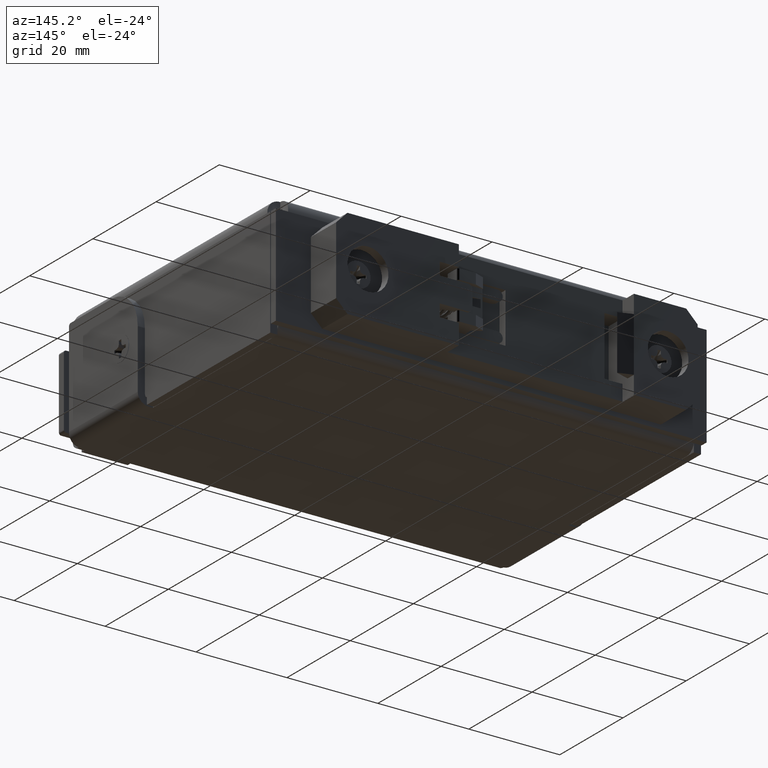
[diagram: clean part render]
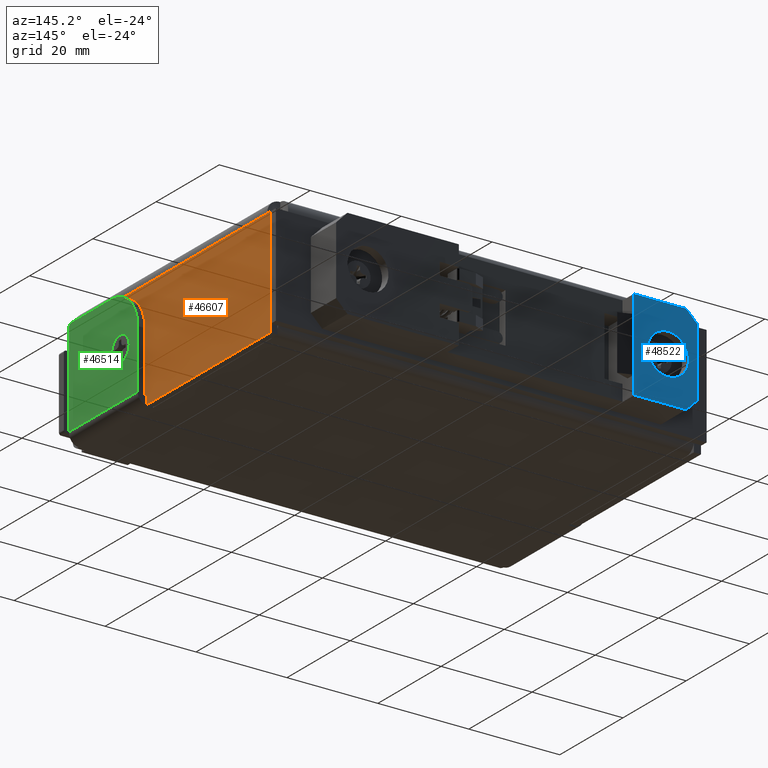
[diagram: same view with three faces highlighted in distinct colors, each labeled with its STEP entity id]
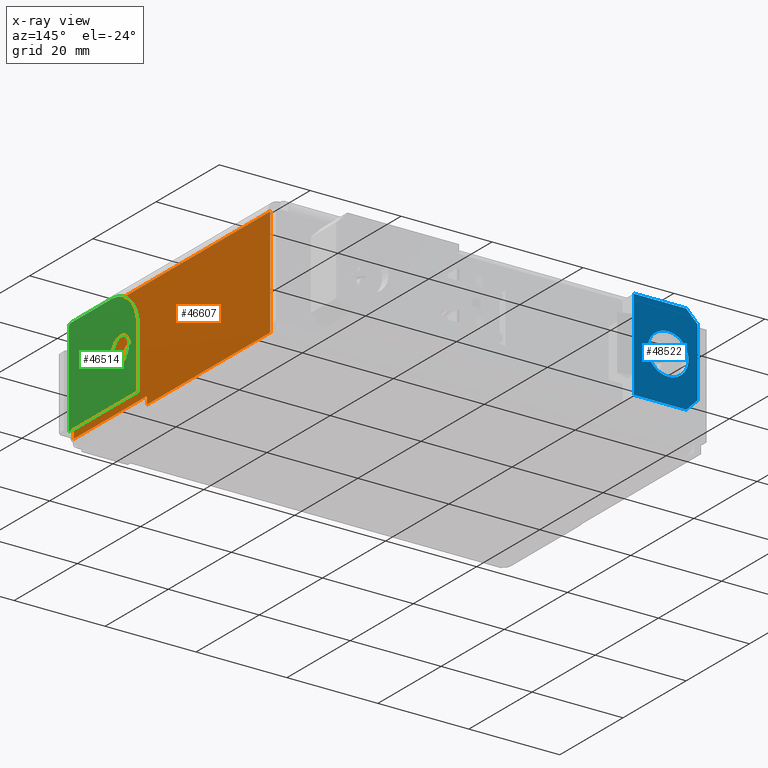
[diagram: x-ray of the same camera — body ghosted, the three highlighted faces saturated]
A machine part, auxiliary view with three faces highlighted in distinct colors.
The next image is the same camera in x-ray (body ghosted, the three faces saturated) — at least one of them is partly hidden behind the body in this view.
Their STEP definitions:

[orange] entity #46607 — the highlighted planar face has unit normal (1, -0, -0).
#520=FACE_BOUND('',#6797,.T.);
#891=PLANE('',#48980);
#4193=FACE_OUTER_BOUND('',#6796,.T.);
#6796=EDGE_LOOP('',(#34490,#34491,#34492,#34493,#34494,#34495,#34496,#34497));
#6797=EDGE_LOOP('',(#34498));
#9775=LINE('',#70749,#14920);
#9783=LINE('',#70765,#14928);
#9796=LINE('',#70791,#14941);
#9797=LINE('',#70793,#14942);
#9816=LINE('',#70834,#14961);
#9820=LINE('',#70850,#14965);
#9823=LINE('',#70885,#14968);
#14920=VECTOR('',#53215,0.393700787401575);
#14928=VECTOR('',#53227,0.393700787401575);
#14941=VECTOR('',#53248,0.393700787401575);
#14942=VECTOR('',#53251,0.393700787401575);
#14961=VECTOR('',#53284,0.393700787401575);
#14965=VECTOR('',#53292,0.08246);
#14968=VECTOR('',#53301,0.393700787401575);
#19342=CIRCLE('',#48931,0.06);
#19357=CIRCLE('',#48958,0.015748031496063);
#21097=VERTEX_POINT('',#70661);
#21125=VERTEX_POINT('',#70739);
#21126=VERTEX_POINT('',#70741);
#21128=VERTEX_POINT('',#70747);
#21134=VERTEX_POINT('',#70763);
#21142=VERTEX_POINT('',#70787);
#21143=VERTEX_POINT('',#70789);
#21158=VERTEX_POINT('',#70833);
#21161=VERTEX_POINT('',#70848);
#25996=EDGE_CURVE('',#21097,#21097,#19342,.T.);
#26035=EDGE_CURVE('',#21125,#21126,#19357,.T.);
#26039=EDGE_CURVE('',#21125,#21128,#9775,.T.);
#26047=EDGE_CURVE('',#21128,#21134,#9783,.T.);
#26060=EDGE_CURVE('',#21143,#21142,#9796,.T.);
#26061=EDGE_CURVE('',#21142,#21134,#9797,.T.);
#26080=EDGE_CURVE('',#21143,#21158,#9816,.T.);
#26086=EDGE_CURVE('',#21158,#21161,#9820,.T.);
#26091=EDGE_CURVE('',#21161,#21126,#9823,.T.);
#34490=ORIENTED_EDGE('',*,*,#26039,.T.);
#34491=ORIENTED_EDGE('',*,*,#26047,.T.);
#34492=ORIENTED_EDGE('',*,*,#26061,.F.);
#34493=ORIENTED_EDGE('',*,*,#26060,.F.);
#34494=ORIENTED_EDGE('',*,*,#26080,.T.);
#34495=ORIENTED_EDGE('',*,*,#26086,.T.);
#34496=ORIENTED_EDGE('',*,*,#26091,.T.);
#34497=ORIENTED_EDGE('',*,*,#26035,.F.);
#34498=ORIENTED_EDGE('',*,*,#25996,.T.);
#46607=ADVANCED_FACE('',(#4193,#520),#891,.T.);
#48931=AXIS2_PLACEMENT_3D('',#70662,#53130,#53131);
#48958=AXIS2_PLACEMENT_3D('',#70742,#53208,#53209);
#48980=AXIS2_PLACEMENT_3D('',#70888,#53305,#53306);
#53130=DIRECTION('center_axis',(-1.,3.73942973021839E-95,-1.71512449944288E-15));
#53131=DIRECTION('ref_axis',(3.51660670886406E-46,-1.,-9.43689570931383E-16));
#53208=DIRECTION('center_axis',(1.,-3.73942973021839E-95,1.71512449944288E-15));
#53209=DIRECTION('ref_axis',(0.,-0.707106781186547,-0.707106781186547));
#53215=DIRECTION('',(-1.71512449944288E-15,0.,1.));
#53227=DIRECTION('',(-4.83037991275703E-47,-1.,2.90045765183322E-15));
#53248=DIRECTION('',(0.,-1.,0.));
#53251=DIRECTION('',(0.,0.,1.));
#53284=DIRECTION('',(3.73942973021839E-95,1.,0.));
#53292=DIRECTION('',(-1.77635683940025E-15,-3.70336020607219E-95,1.));
#53301=DIRECTION('',(-3.73942973021839E-95,-1.,-6.41358754424265E-110));
#53305=DIRECTION('center_axis',(1.,-3.73942973021839E-95,1.71512449944288E-15));
#53306=DIRECTION('ref_axis',(1.71512449944288E-15,-3.7394297302184E-95,
-1.));
#70661=CARTESIAN_POINT('',(1.865,0.636343582698249,0.567172404581086));
#70662=CARTESIAN_POINT('Origin',(1.865,0.576343582698249,0.567172404581086));
#70739=CARTESIAN_POINT('',(1.865,0.346456698193325,1.01574803149606));
#70741=CARTESIAN_POINT('',(1.865,0.362204729689388,1.));
#70742=CARTESIAN_POINT('Origin',(1.865,0.362204729689388,1.01574803149606));
#70747=CARTESIAN_POINT('',(1.865,0.346456698193325,1.067));
#70749=CARTESIAN_POINT('',(1.865,0.346456698193325,0.749246474039361));
#70763=CARTESIAN_POINT('',(1.865,-1.19012598425197,1.067));
#70765=CARTESIAN_POINT('',(1.865,-0.804011809703637,1.067));
#70787=CARTESIAN_POINT('',(1.865,-1.19012598425197,0.124));
#70789=CARTESIAN_POINT('',(1.865,-1.15415937956644,0.124));
#70791=CARTESIAN_POINT('',(1.865,-1.15415937956644,0.124));
#70793=CARTESIAN_POINT('',(1.865,-1.19012598425197,1.));
#70833=CARTESIAN_POINT('',(1.865,1.26,0.124));
#70834=CARTESIAN_POINT('',(1.865,0.0590294846789331,0.124));
#70848=CARTESIAN_POINT('',(1.865,1.26,1.));
#70850=CARTESIAN_POINT('',(1.865,1.26,-0.135055730215014));
#70885=CARTESIAN_POINT('',(1.865,0.205194841649611,1.));
#70888=CARTESIAN_POINT('Origin',(1.865,0.0560589693578658,0.498492948078721));

[blue] entity #48522 — the highlighted planar face has unit normal (0, 1, 0).
#683=FACE_BOUND('',#8875,.T.);
#2335=PLANE('',#51614);
#6108=FACE_OUTER_BOUND('',#8874,.T.);
#8874=EDGE_LOOP('',(#45019,#45020,#45021,#45022,#45023,#45024,#45025,#45026));
#8875=EDGE_LOOP('',(#45027));
#13894=LINE('',#92771,#19039);
#13903=LINE('',#92789,#19048);
#13934=LINE('',#92859,#19079);
#13938=LINE('',#92865,#19083);
#13962=LINE('',#92912,#19107);
#13964=LINE('',#92916,#19109);
#13965=LINE('',#92918,#19110);
#13970=LINE('',#92928,#19115);
#19039=VECTOR('',#62570,0.393700787401575);
#19048=VECTOR('',#62587,0.393700787401575);
#19079=VECTOR('',#62648,0.393700787401575);
#19083=VECTOR('',#62652,0.393700787401575);
#19107=VECTOR('',#62700,0.393700787401575);
#19109=VECTOR('',#62704,0.393700787401575);
#19110=VECTOR('',#62707,0.393700787401575);
#19115=VECTOR('',#62720,0.393700787401575);
#20147=CIRCLE('',#51615,0.177165354330709);
#24411=VERTEX_POINT('',#92768);
#24412=VERTEX_POINT('',#92770);
#24416=VERTEX_POINT('',#92786);
#24417=VERTEX_POINT('',#92788);
#24440=VERTEX_POINT('',#92856);
#24443=VERTEX_POINT('',#92864);
#24454=VERTEX_POINT('',#92910);
#24455=VERTEX_POINT('',#92914);
#24457=VERTEX_POINT('',#92929);
#31273=EDGE_CURVE('',#24412,#24411,#13894,.T.);
#31282=EDGE_CURVE('',#24417,#24416,#13903,.T.);
#31317=EDGE_CURVE('',#24416,#24440,#13934,.T.);
#31321=EDGE_CURVE('',#24443,#24412,#13938,.T.);
#31346=EDGE_CURVE('',#24454,#24417,#13962,.T.);
#31348=EDGE_CURVE('',#24455,#24454,#13964,.T.);
#31349=EDGE_CURVE('',#24411,#24455,#13965,.T.);
#31354=EDGE_CURVE('',#24440,#24443,#13970,.T.);
#31355=EDGE_CURVE('',#24457,#24457,#20147,.T.);
#45019=ORIENTED_EDGE('',*,*,#31354,.T.);
#45020=ORIENTED_EDGE('',*,*,#31321,.T.);
#45021=ORIENTED_EDGE('',*,*,#31273,.T.);
#45022=ORIENTED_EDGE('',*,*,#31349,.T.);
#45023=ORIENTED_EDGE('',*,*,#31348,.T.);
#45024=ORIENTED_EDGE('',*,*,#31346,.T.);
#45025=ORIENTED_EDGE('',*,*,#31282,.T.);
#45026=ORIENTED_EDGE('',*,*,#31317,.T.);
#45027=ORIENTED_EDGE('',*,*,#31355,.T.);
#48522=ADVANCED_FACE('',(#6108,#683),#2335,.T.);
#51614=AXIS2_PLACEMENT_3D('',#92927,#62718,#62719);
#51615=AXIS2_PLACEMENT_3D('',#92930,#62721,#62722);
#62570=DIRECTION('',(-1.,0.,0.));
#62587=DIRECTION('',(1.,0.,0.));
#62648=DIRECTION('',(6.666706076075E-10,-3.10004799608521E-11,-1.));
#62652=DIRECTION('',(-6.666706076075E-10,3.10004799608521E-11,-1.));
#62700=DIRECTION('',(0.707106781186547,0.,0.707106781186547));
#62704=DIRECTION('',(0.,0.,1.));
#62707=DIRECTION('',(-0.707106781186548,0.,0.707106781186547));
#62718=DIRECTION('center_axis',(0.,1.,0.));
#62719=DIRECTION('ref_axis',(0.,0.,1.));
#62720=DIRECTION('',(0.,0.,-1.));
#62721=DIRECTION('center_axis',(0.,-1.,0.));
#62722=DIRECTION('ref_axis',(-2.46716227694479E-16,0.,1.));
#92768=CARTESIAN_POINT('',(0.0984251969160105,0.31496062992126,-0.787401574816273));
#92770=CARTESIAN_POINT('',(0.551181102292213,0.31496062992126,-0.78740157480315));
#92771=CARTESIAN_POINT('',(0.551181102257217,0.31496062992126,-0.78740157480315));
#92786=CARTESIAN_POINT('',(0.551181102292213,0.31496062992126,0.));
#92788=CARTESIAN_POINT('',(0.0984251969160105,0.31496062992126,1.31233606658841E-11));
#92789=CARTESIAN_POINT('',(0.0984251969291339,0.31496062992126,0.));
#92856=CARTESIAN_POINT('',(0.551181102362205,0.314960629916378,-0.15748031496063));
#92859=CARTESIAN_POINT('',(0.551181102257217,0.31496062992126,0.));
#92864=CARTESIAN_POINT('',(0.551181102362205,0.314960629916378,-0.62992125984252));
#92865=CARTESIAN_POINT('',(0.551181102362205,0.314960629916378,-0.62992125984252));
#92910=CARTESIAN_POINT('',(0.,0.31496062992126,-0.0984251968503937));
#92912=CARTESIAN_POINT('',(0.,0.31496062992126,-0.0984251968503937));
#92914=CARTESIAN_POINT('',(0.,0.31496062992126,-0.688976377952756));
#92916=CARTESIAN_POINT('',(0.,0.31496062992126,-0.688976377952756));
#92918=CARTESIAN_POINT('',(0.0984251968503937,0.31496062992126,-0.78740157480315));
#92927=CARTESIAN_POINT('Origin',(0.,0.31496062992126,-0.393700787401575));
#92928=CARTESIAN_POINT('',(0.551181102362205,0.314960629916378,-0.15748031496063));
#92929=CARTESIAN_POINT('',(0.255905511883698,0.31496062992126,-0.216535433070866));
#92930=CARTESIAN_POINT('Origin',(0.255905511811024,0.31496062992126,-0.393700787401575));

[green] entity #46514 — the highlighted planar face has unit normal (1, 0, 0).
#513=FACE_BOUND('',#6697,.T.);
#828=PLANE('',#48859);
#4100=FACE_OUTER_BOUND('',#6696,.T.);
#6696=EDGE_LOOP('',(#34084,#34085,#34086,#34087,#34088,#34089));
#6697=EDGE_LOOP('',(#34090));
#9655=LINE('',#70294,#14800);
#9685=LINE('',#70368,#14830);
#9686=LINE('',#70369,#14831);
#9687=LINE('',#70370,#14832);
#14800=VECTOR('',#52843,0.393700787401575);
#14830=VECTOR('',#52925,0.393700787401575);
#14831=VECTOR('',#52926,0.061);
#14832=VECTOR('',#52927,0.393700787401575);
#19293=CIRCLE('',#48667,0.105);
#19320=CIRCLE('',#48831,0.02);
#19326=CIRCLE('',#48854,0.330302952856007);
#20222=VERTEX_POINT('',#63330);
#21050=VERTEX_POINT('',#70281);
#21051=VERTEX_POINT('',#70282);
#21055=VERTEX_POINT('',#70292);
#21068=VERTEX_POINT('',#70349);
#21069=VERTEX_POINT('',#70350);
#21073=VERTEX_POINT('',#70367);
#24663=EDGE_CURVE('',#20222,#20222,#19293,.T.);
#25869=EDGE_CURVE('',#21050,#21051,#19320,.T.);
#25875=EDGE_CURVE('',#21050,#21055,#9655,.T.);
#25902=EDGE_CURVE('',#21068,#21069,#19326,.T.);
#25911=EDGE_CURVE('',#21055,#21073,#9685,.T.);
#25912=EDGE_CURVE('',#21073,#21068,#9686,.T.);
#25913=EDGE_CURVE('',#21069,#21051,#9687,.T.);
#34084=ORIENTED_EDGE('',*,*,#25869,.F.);
#34085=ORIENTED_EDGE('',*,*,#25875,.T.);
#34086=ORIENTED_EDGE('',*,*,#25911,.T.);
#34087=ORIENTED_EDGE('',*,*,#25912,.T.);
#34088=ORIENTED_EDGE('',*,*,#25902,.T.);
#34089=ORIENTED_EDGE('',*,*,#25913,.T.);
#34090=ORIENTED_EDGE('',*,*,#24663,.T.);
#46514=ADVANCED_FACE('',(#4100,#513),#828,.T.);
#48667=AXIS2_PLACEMENT_3D('',#63331,#51854,#51855);
#48831=AXIS2_PLACEMENT_3D('',#70283,#52833,#52834);
#48854=AXIS2_PLACEMENT_3D('',#70351,#52906,#52907);
#48859=AXIS2_PLACEMENT_3D('',#70366,#52923,#52924);
#51854=DIRECTION('center_axis',(-1.,0.,-1.71512449944288E-15));
#51855=DIRECTION('ref_axis',(0.,1.,0.));
#52833=DIRECTION('center_axis',(-1.,0.,-1.71512449944288E-15));
#52834=DIRECTION('ref_axis',(0.,-0.707106781186541,0.707106781186554));
#52843=DIRECTION('',(1.71512449944288E-15,0.,-1.));
#52906=DIRECTION('center_axis',(1.,0.,1.71512449944288E-15));
#52907=DIRECTION('ref_axis',(1.71382100836206E-15,0.0428200025681838,0.999082803064921));
#52923=DIRECTION('center_axis',(1.,0.,1.71512449944288E-15));
#52924=DIRECTION('ref_axis',(1.71512449944288E-15,0.,-1.));
#52925=DIRECTION('',(0.,1.,0.));
#52926=DIRECTION('',(-1.77635683940025E-15,0.,1.));
#52927=DIRECTION('',(0.,-1.,0.));
#63330=CARTESIAN_POINT('',(1.932,-1.067,0.500000000000007));
#63331=CARTESIAN_POINT('Origin',(1.932,-0.962000000000001,0.500000000000007));
#70281=CARTESIAN_POINT('',(1.932,-1.60615937956643,0.912000000000001));
#70282=CARTESIAN_POINT('',(1.932,-1.58615937956643,0.932));
#70283=CARTESIAN_POINT('Origin',(1.932,-1.58615937956643,0.912000000000001));
#70292=CARTESIAN_POINT('',(1.932,-1.60615937956643,0.0920000000000002));
#70294=CARTESIAN_POINT('',(1.932,-1.60615937956643,0.0920000000000002));
#70349=CARTESIAN_POINT('',(1.932,-0.75,0.601999999999994));
#70350=CARTESIAN_POINT('',(1.932,-1.06615937956659,0.932));
#70351=CARTESIAN_POINT('Origin',(1.932,-1.08030295285601,0.601999999999994));
#70366=CARTESIAN_POINT('Origin',(1.932,-1.18005711791559,0.462175117465897));
#70367=CARTESIAN_POINT('',(1.932,-0.75,0.0920000000000002));
#70368=CARTESIAN_POINT('',(1.932,-1.18252855895779,0.0920000000000002));
#70369=CARTESIAN_POINT('',(1.932,-0.75,-0.0996371518689774));
#70370=CARTESIAN_POINT('',(1.932,-1.60615937956643,0.932));